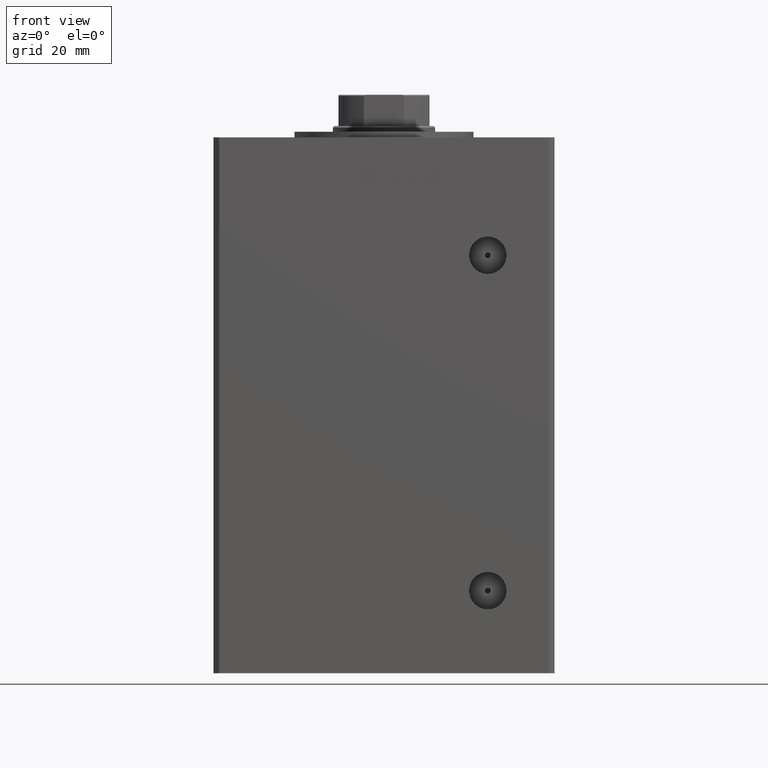
[diagram: clean part render]
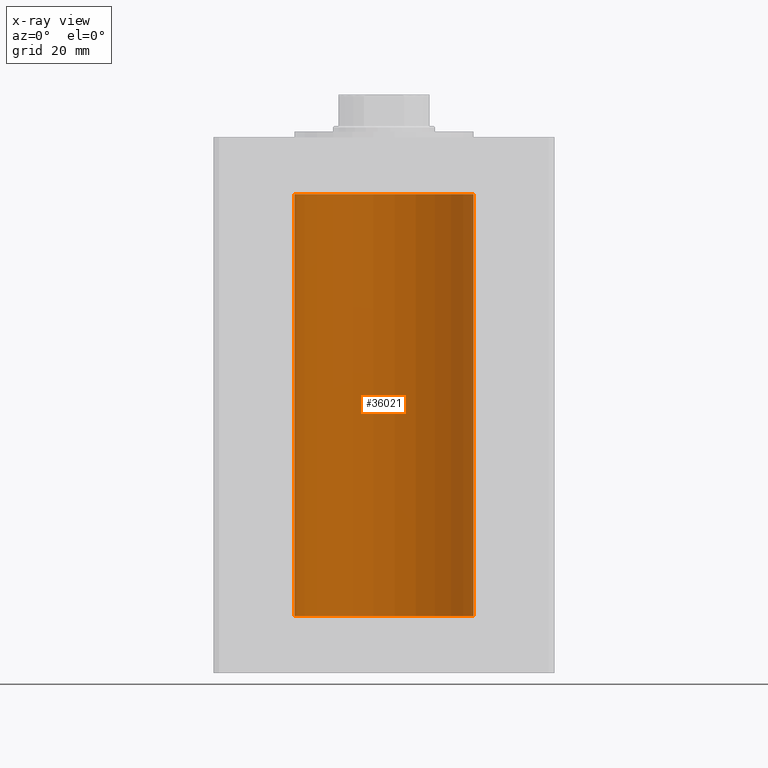
[diagram: x-ray — body ghosted, one internal face saturated and labeled with its STEP entity id]
A machine part, front view, then the same camera in x-ray: the body is ghosted and one INTERNAL B-rep face — a face not visible from any outside direction — is saturated and labeled: STEP entity #36021.
In plain terms, the highlighted cylindrical surface (partial cylindrical patch) has radius 31.5 mm, axis along (-0, -0, -1).
Its self-contained STEP definition (entity closure, byte-faithful):
#1045 = CIRCLE ( 'NONE', #28009, 31.50000000000000000 ) ;
#3986 = DIRECTION ( 'NONE',  ( -1.000000000000000000, 0.000000000000000000, 0.000000000000000000 ) ) ;
#6187 = AXIS2_PLACEMENT_3D ( 'NONE', #40621, #12669, #3986 ) ;
#6439 = EDGE_CURVE ( 'NONE', #51504, #23785, #32357, .T. ) ;
#7533 = CARTESIAN_POINT ( 'NONE',  ( 31.50000000000000000, 3.857637417314162689E-15, 148.5000000000000000 ) ) ;
#7995 = EDGE_CURVE ( 'NONE', #51504, #13510, #22373, .T. ) ;
#8455 = FACE_OUTER_BOUND ( 'NONE', #18572, .T. ) ;
#8798 = DIRECTION ( 'NONE',  ( -0.000000000000000000, 0.000000000000000000, 1.000000000000000000 ) ) ;
#9520 = LINE ( 'NONE', #25599, #42202 ) ;
#11502 = ORIENTED_EDGE ( 'NONE', *, *, #7995, .F. ) ;
#11527 = CARTESIAN_POINT ( 'NONE',  ( 31.50000000000000000, 3.857637417314162689E-15, 148.5000000000000000 ) ) ;
#12416 = CYLINDRICAL_SURFACE ( 'NONE', #6187, 31.50000000000000000 ) ;
#12669 = DIRECTION ( 'NONE',  ( -0.000000000000000000, -0.000000000000000000, -1.000000000000000000 ) ) ;
#13510 = VERTEX_POINT ( 'NONE', #41956 ) ;
#13859 = CARTESIAN_POINT ( 'NONE',  ( -31.50000000000000000, 0.000000000000000000, 0.000000000000000000 ) ) ;
#14457 = DIRECTION ( 'NONE',  ( -0.000000000000000000, -0.000000000000000000, -1.000000000000000000 ) ) ;
#14686 = AXIS2_PLACEMENT_3D ( 'NONE', #37003, #8798, #28587 ) ;
#16014 = CARTESIAN_POINT ( 'NONE',  ( -31.50000000000000000, 0.000000000000000000, 148.5000000000000000 ) ) ;
#18572 = EDGE_LOOP ( 'NONE', ( #11502, #48126, #46653, #32112 ) ) ;
#20860 = DIRECTION ( 'NONE',  ( -0.000000000000000000, -0.000000000000000000, -1.000000000000000000 ) ) ;
#21609 = CARTESIAN_POINT ( 'NONE',  ( 0.000000000000000000, 0.000000000000000000, 0.000000000000000000 ) ) ;
#22373 = LINE ( 'NONE', #11527, #48382 ) ;
#23785 = VERTEX_POINT ( 'NONE', #16014 ) ;
#25599 = CARTESIAN_POINT ( 'NONE',  ( -31.50000000000000000, 0.000000000000000000, 148.5000000000000000 ) ) ;
#28009 = AXIS2_PLACEMENT_3D ( 'NONE', #21609, #36646, #41369 ) ;
#28587 = DIRECTION ( 'NONE',  ( 1.000000000000000000, 0.000000000000000000, 0.000000000000000000 ) ) ;
#29915 = EDGE_CURVE ( 'NONE', #23785, #44943, #9520, .T. ) ;
#32112 = ORIENTED_EDGE ( 'NONE', *, *, #33966, .F. ) ;
#32357 = CIRCLE ( 'NONE', #14686, 31.50000000000000000 ) ;
#33966 = EDGE_CURVE ( 'NONE', #13510, #44943, #1045, .T. ) ;
#36021 = ADVANCED_FACE ( 'NONE', ( #8455 ), #12416, .F. ) ;
#36646 = DIRECTION ( 'NONE',  ( -0.000000000000000000, 0.000000000000000000, 1.000000000000000000 ) ) ;
#37003 = CARTESIAN_POINT ( 'NONE',  ( 0.000000000000000000, 0.000000000000000000, 148.5000000000000000 ) ) ;
#40621 = CARTESIAN_POINT ( 'NONE',  ( 0.000000000000000000, 0.000000000000000000, 148.5000000000000000 ) ) ;
#41369 = DIRECTION ( 'NONE',  ( 1.000000000000000000, 0.000000000000000000, 0.000000000000000000 ) ) ;
#41956 = CARTESIAN_POINT ( 'NONE',  ( 31.50000000000000000, 3.857637417314162689E-15, 0.000000000000000000 ) ) ;
#42202 = VECTOR ( 'NONE', #20860, 1000.000000000000000 ) ;
#44943 = VERTEX_POINT ( 'NONE', #13859 ) ;
#46653 = ORIENTED_EDGE ( 'NONE', *, *, #29915, .T. ) ;
#48126 = ORIENTED_EDGE ( 'NONE', *, *, #6439, .T. ) ;
#48382 = VECTOR ( 'NONE', #14457, 1000.000000000000000 ) ;
#51504 = VERTEX_POINT ( 'NONE', #7533 ) ;